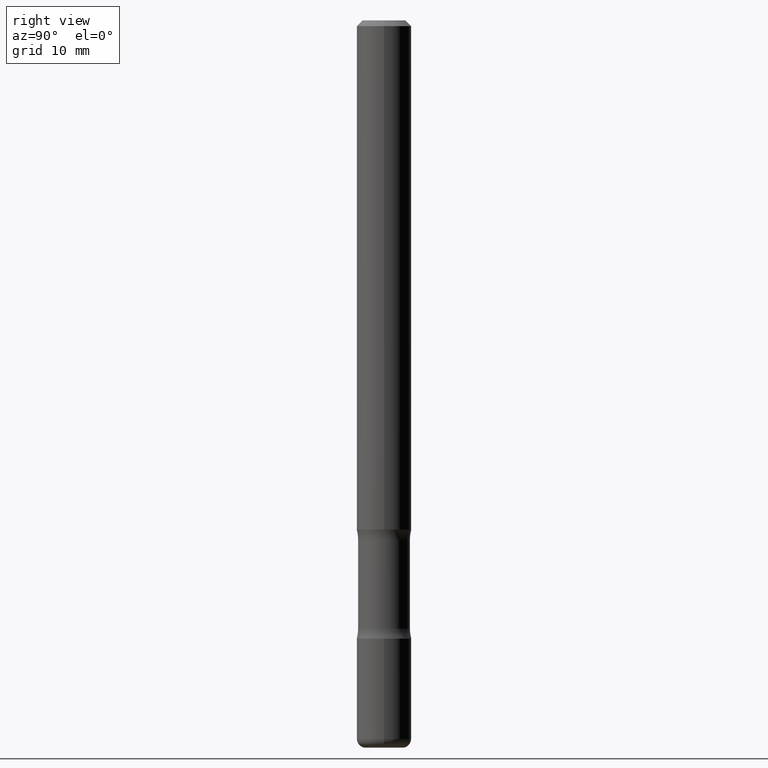
[diagram: clean part render]
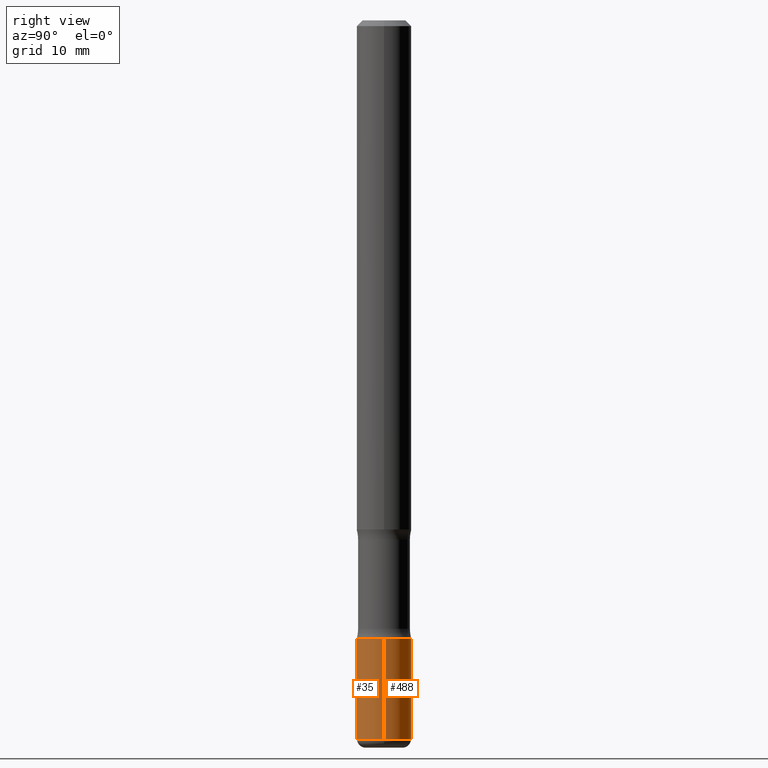
[diagram: same view with one multi-face feature highlighted, each face labeled with its STEP entity id]
A machine part, right view. The highlighted faces form ONE feature: a constant-radius fillet chain: 2 tangent blend faces with common blend radius 2.3813 mm. The faces share edges in the B-rep.
Their STEP definitions:
[1] entity #488 (Cylinder):
#22 = DIRECTION ( 'NONE',  ( 1.000000000000000000, -6.982962677686265922E-15, 0.000000000000000000 ) ) ;
#33 = VERTEX_POINT ( 'NONE', #357 ) ;
#66 = LINE ( 'NONE', #419, #157 ) ;
#72 = CIRCLE ( 'NONE', #149, 0.09375000000000009714 ) ;
#90 = VERTEX_POINT ( 'NONE', #235 ) ;
#91 = CARTESIAN_POINT ( 'NONE',  ( 0.09375000000000005551, -6.546527510330878985E-16, 4.571415727308692608E-30 ) ) ;
#124 = ORIENTED_EDGE ( 'NONE', *, *, #163, .T. ) ;
#129 = CARTESIAN_POINT ( 'NONE',  ( 0.09375000000000002776, -8.074050596074771916E-15, -2.125000000000000000 ) ) ;
#149 = AXIS2_PLACEMENT_3D ( 'NONE', #417, #372, #22 ) ;
#157 = VECTOR ( 'NONE', #316, 39.37007874015748143 ) ;
#163 = EDGE_CURVE ( 'NONE', #289, #33, #72, .T. ) ;
#202 = AXIS2_PLACEMENT_3D ( 'NONE', #253, #468, #390 ) ;
#210 = CARTESIAN_POINT ( 'NONE',  ( 5.196621213143415268E-29, -7.419397845041685201E-15, -2.125000000000000000 ) ) ;
#226 = ORIENTED_EDGE ( 'NONE', *, *, #355, .F. ) ;
#234 = CARTESIAN_POINT ( 'NONE',  ( 0.09374999999999994449, -9.278611657975658288E-15, -2.470000000000000639 ) ) ;
#235 = CARTESIAN_POINT ( 'NONE',  ( -0.09375000000000002776, -7.355544561217034463E-15, -2.125000000000000000 ) ) ;
#236 = ORIENTED_EDGE ( 'NONE', *, *, #276, .T. ) ;
#253 = CARTESIAN_POINT ( 'NONE',  ( 0.000000000000000000, 0.000000000000000000, 0.000000000000000000 ) ) ;
#276 = EDGE_CURVE ( 'NONE', #33, #90, #66, .T. ) ;
#289 = VERTEX_POINT ( 'NONE', #234 ) ;
#297 = CIRCLE ( 'NONE', #382, 0.09375000000000002776 ) ;
#300 = CYLINDRICAL_SURFACE ( 'NONE', #202, 0.09375000000000005551 ) ;
#303 = EDGE_LOOP ( 'NONE', ( #124, #236, #226, #453 ) ) ;
#316 = DIRECTION ( 'NONE',  ( -2.445468806185136877E-29, 3.491481338843145188E-15, 1.000000000000000000 ) ) ;
#330 = VECTOR ( 'NONE', #516, 39.37007874015748143 ) ;
#345 = FACE_OUTER_BOUND ( 'NONE', #303, .T. ) ;
#355 = EDGE_CURVE ( 'NONE', #484, #90, #297, .T. ) ;
#357 = CARTESIAN_POINT ( 'NONE',  ( -0.09374999999999994449, -7.957825092167479227E-15, -2.470000000000000639 ) ) ;
#367 = LINE ( 'NONE', #91, #330 ) ;
#372 = DIRECTION ( 'NONE',  ( -2.445468806185136597E-29, 3.491481338843145583E-15, 1.000000000000000000 ) ) ;
#382 = AXIS2_PLACEMENT_3D ( 'NONE', #210, #513, #477 ) ;
#390 = DIRECTION ( 'NONE',  ( 1.000000000000000000, -6.982962677686266711E-15, 4.876176775795935793E-29 ) ) ;
#417 = CARTESIAN_POINT ( 'NONE',  ( 6.040307951277289098E-29, -8.623958906942573151E-15, -2.470000000000000639 ) ) ;
#419 = CARTESIAN_POINT ( 'NONE',  ( -0.09375000000000005551, 6.661338147750943187E-16, -4.611501647113976798E-30 ) ) ;
#453 = ORIENTED_EDGE ( 'NONE', *, *, #481, .F. ) ;
#468 = DIRECTION ( 'NONE',  ( -2.445468806185136597E-29, 3.491481338843145583E-15, 1.000000000000000000 ) ) ;
#477 = DIRECTION ( 'NONE',  ( 1.000000000000000000, -6.982962677686270655E-15, 0.000000000000000000 ) ) ;
#481 = EDGE_CURVE ( 'NONE', #289, #484, #367, .T. ) ;
#484 = VERTEX_POINT ( 'NONE', #129 ) ;
#488 = ADVANCED_FACE ( 'NONE', ( #345 ), #300, .T. ) ;
#513 = DIRECTION ( 'NONE',  ( -2.445468806185136597E-29, 3.491481338843145583E-15, 1.000000000000000000 ) ) ;
#516 = DIRECTION ( 'NONE',  ( -2.445468806185136877E-29, 3.491481338843145188E-15, 1.000000000000000000 ) ) ;
[2] entity #35 (Cylinder):
#16 = AXIS2_PLACEMENT_3D ( 'NONE', #442, #46, #214 ) ;
#31 = ORIENTED_EDGE ( 'NONE', *, *, #438, .F. ) ;
#33 = VERTEX_POINT ( 'NONE', #357 ) ;
#35 = ADVANCED_FACE ( 'NONE', ( #523 ), #476, .T. ) ;
#46 = DIRECTION ( 'NONE',  ( -2.445468806185136597E-29, 3.491481338843145583E-15, 1.000000000000000000 ) ) ;
#62 = AXIS2_PLACEMENT_3D ( 'NONE', #403, #396, #551 ) ;
#66 = LINE ( 'NONE', #419, #157 ) ;
#90 = VERTEX_POINT ( 'NONE', #235 ) ;
#91 = CARTESIAN_POINT ( 'NONE',  ( 0.09375000000000005551, -6.546527510330878985E-16, 4.571415727308692608E-30 ) ) ;
#99 = EDGE_LOOP ( 'NONE', ( #525, #392, #222, #31 ) ) ;
#116 = CIRCLE ( 'NONE', #542, 0.09375000000000002776 ) ;
#129 = CARTESIAN_POINT ( 'NONE',  ( 0.09375000000000002776, -8.074050596074771916E-15, -2.125000000000000000 ) ) ;
#157 = VECTOR ( 'NONE', #316, 39.37007874015748143 ) ;
#167 = CIRCLE ( 'NONE', #62, 0.09375000000000009714 ) ;
#214 = DIRECTION ( 'NONE',  ( 1.000000000000000000, -6.982962677686266711E-15, 4.876176775795935793E-29 ) ) ;
#216 = DIRECTION ( 'NONE',  ( -2.445468806185136597E-29, 3.491481338843145583E-15, 1.000000000000000000 ) ) ;
#222 = ORIENTED_EDGE ( 'NONE', *, *, #481, .T. ) ;
#234 = CARTESIAN_POINT ( 'NONE',  ( 0.09374999999999994449, -9.278611657975658288E-15, -2.470000000000000639 ) ) ;
#235 = CARTESIAN_POINT ( 'NONE',  ( -0.09375000000000002776, -7.355544561217034463E-15, -2.125000000000000000 ) ) ;
#261 = CARTESIAN_POINT ( 'NONE',  ( 5.196621213143415268E-29, -7.419397845041685201E-15, -2.125000000000000000 ) ) ;
#276 = EDGE_CURVE ( 'NONE', #33, #90, #66, .T. ) ;
#289 = VERTEX_POINT ( 'NONE', #234 ) ;
#316 = DIRECTION ( 'NONE',  ( -2.445468806185136877E-29, 3.491481338843145188E-15, 1.000000000000000000 ) ) ;
#330 = VECTOR ( 'NONE', #516, 39.37007874015748143 ) ;
#357 = CARTESIAN_POINT ( 'NONE',  ( -0.09374999999999994449, -7.957825092167479227E-15, -2.470000000000000639 ) ) ;
#367 = LINE ( 'NONE', #91, #330 ) ;
#392 = ORIENTED_EDGE ( 'NONE', *, *, #443, .T. ) ;
#396 = DIRECTION ( 'NONE',  ( -2.445468806185136597E-29, 3.491481338843145583E-15, 1.000000000000000000 ) ) ;
#403 = CARTESIAN_POINT ( 'NONE',  ( 6.040307951277289098E-29, -8.623958906942573151E-15, -2.470000000000000639 ) ) ;
#419 = CARTESIAN_POINT ( 'NONE',  ( -0.09375000000000005551, 6.661338147750943187E-16, -4.611501647113976798E-30 ) ) ;
#438 = EDGE_CURVE ( 'NONE', #90, #484, #116, .T. ) ;
#442 = CARTESIAN_POINT ( 'NONE',  ( 0.000000000000000000, 0.000000000000000000, 0.000000000000000000 ) ) ;
#443 = EDGE_CURVE ( 'NONE', #33, #289, #167, .T. ) ;
#476 = CYLINDRICAL_SURFACE ( 'NONE', #16, 0.09375000000000005551 ) ;
#481 = EDGE_CURVE ( 'NONE', #289, #484, #367, .T. ) ;
#484 = VERTEX_POINT ( 'NONE', #129 ) ;
#516 = DIRECTION ( 'NONE',  ( -2.445468806185136877E-29, 3.491481338843145188E-15, 1.000000000000000000 ) ) ;
#523 = FACE_OUTER_BOUND ( 'NONE', #99, .T. ) ;
#525 = ORIENTED_EDGE ( 'NONE', *, *, #276, .F. ) ;
#542 = AXIS2_PLACEMENT_3D ( 'NONE', #261, #216, #553 ) ;
#551 = DIRECTION ( 'NONE',  ( 1.000000000000000000, -6.982962677686265922E-15, 0.000000000000000000 ) ) ;
#553 = DIRECTION ( 'NONE',  ( 1.000000000000000000, -6.982962677686270655E-15, 0.000000000000000000 ) ) ;